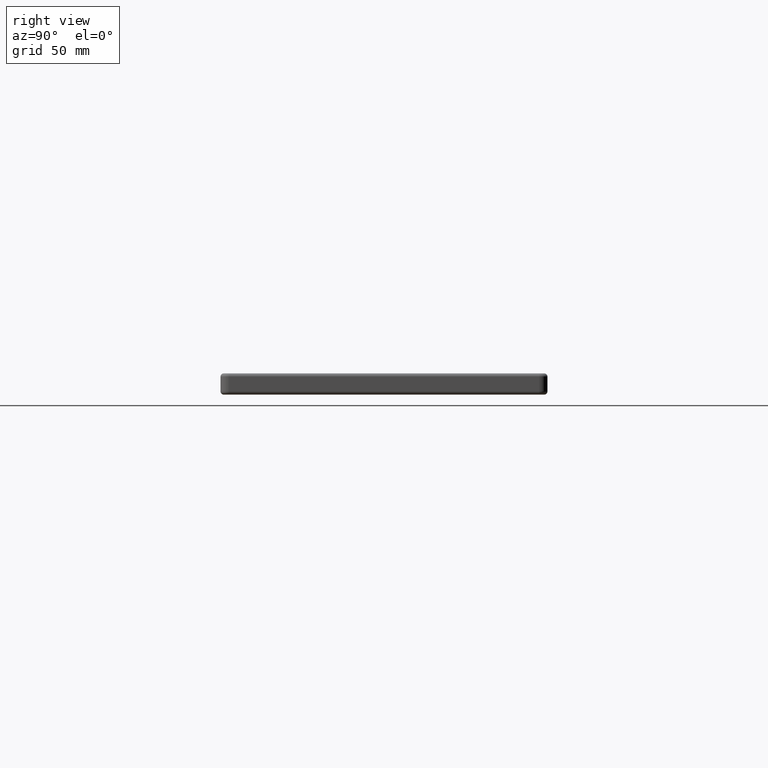
[diagram: clean part render]
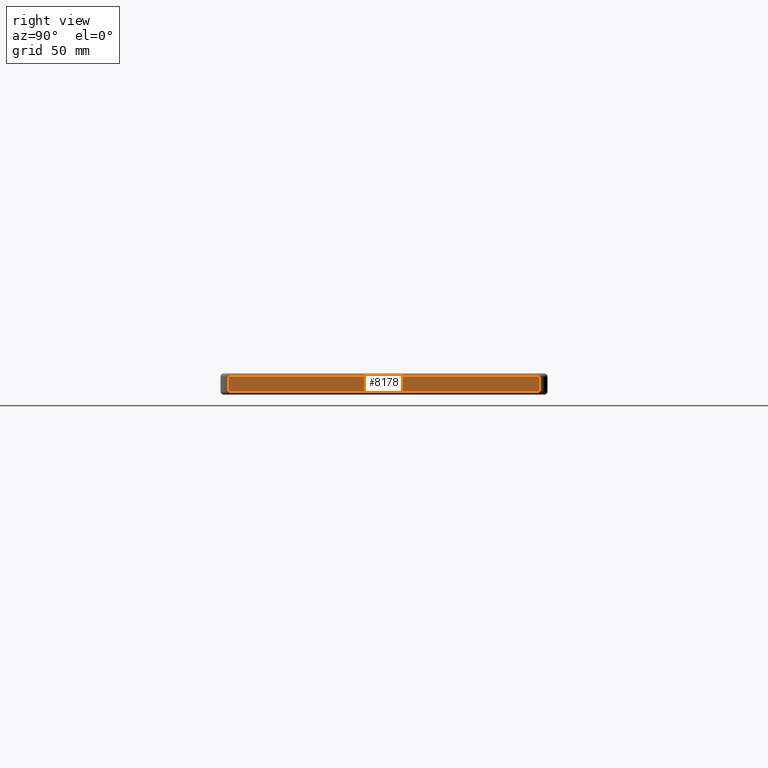
[diagram: same view with one face highlighted and labeled with its STEP entity id]
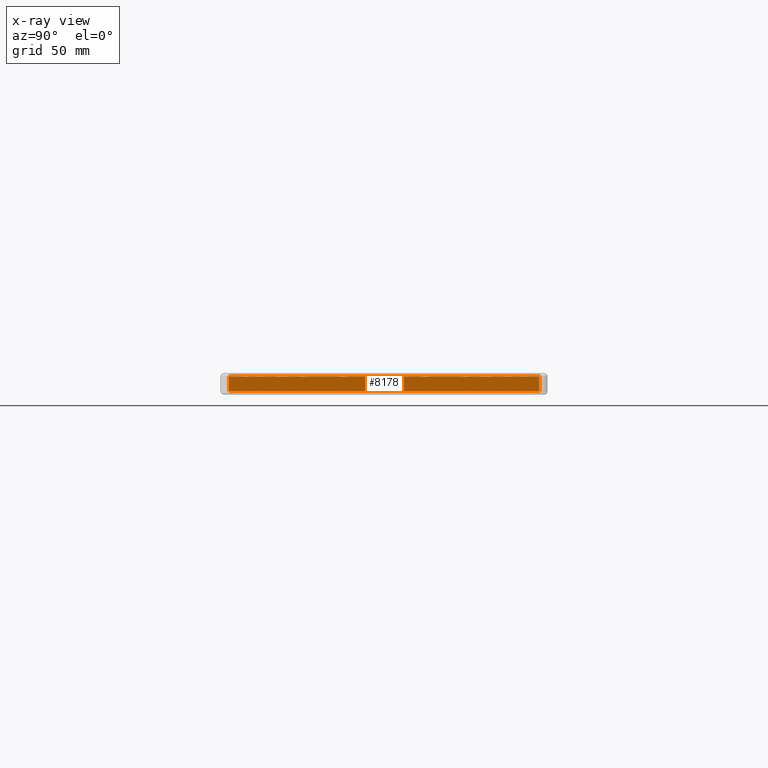
[diagram: x-ray of the same camera — body ghosted, the highlighted face saturated]
A machine part, right view. The second image highlights one B-rep face of the part: STEP entity #8178.
The next image is the same camera in x-ray: the body ghosted, the highlighted face saturated — about 0% of this face is hidden behind the body in this view.
In plain terms, the highlighted planar face has unit normal (1, 0, -0).
Its self-contained STEP definition (entity closure, byte-faithful):
#15 = EDGE_CURVE ( 'NONE', #4998, #7725, #4264, .T. ) ;
#364 = DIRECTION ( 'NONE',  ( 0.0000000000000000000, 0.0000000000000000000, 1.000000000000000000 ) ) ;
#470 = DIRECTION ( 'NONE',  ( 1.000000000000000000, 2.921639538487250300E-016, -0.0000000000000000000 ) ) ;
#869 = EDGE_CURVE ( 'NONE', #4998, #7840, #4595, .T. ) ;
#1389 = DIRECTION ( 'NONE',  ( 2.921639538487250300E-016, -1.000000000000000000, -0.0000000000000000000 ) ) ;
#1456 = DIRECTION ( 'NONE',  ( -2.921639538487250300E-016, 1.000000000000000000, 0.0000000000000000000 ) ) ;
#2570 = LINE ( 'NONE', #6990, #8968 ) ;
#2777 = CARTESIAN_POINT ( 'NONE',  ( 199.9999999999999400, 95.00000000000018500, -11.00000000000000000 ) ) ;
#3415 = CARTESIAN_POINT ( 'NONE',  ( 200.0000000000000600, -95.00000000000007100, -2.000000000000001800 ) ) ;
#3890 = ORIENTED_EDGE ( 'NONE', *, *, #15, .F. ) ;
#3933 = ORIENTED_EDGE ( 'NONE', *, *, #7842, .T. ) ;
#4264 = LINE ( 'NONE', #7737, #4830 ) ;
#4595 = LINE ( 'NONE', #5803, #6288 ) ;
#4830 = VECTOR ( 'NONE', #5626, 1000.000000000000000 ) ;
#4998 = VERTEX_POINT ( 'NONE', #8599 ) ;
#5321 = ORIENTED_EDGE ( 'NONE', *, *, #5952, .T. ) ;
#5621 = PLANE ( 'NONE',  #7967 ) ;
#5626 = DIRECTION ( 'NONE',  ( 0.0000000000000000000, 0.0000000000000000000, 1.000000000000000000 ) ) ;
#5803 = CARTESIAN_POINT ( 'NONE',  ( 200.0000000000000000, -95.00000000000007100, -11.00000000000000000 ) ) ;
#5952 = EDGE_CURVE ( 'NONE', #7840, #6139, #2570, .T. ) ;
#6032 = EDGE_LOOP ( 'NONE', ( #3890, #6700, #5321, #3933 ) ) ;
#6139 = VERTEX_POINT ( 'NONE', #7775 ) ;
#6288 = VECTOR ( 'NONE', #1456, 1000.000000000000000 ) ;
#6317 = DIRECTION ( 'NONE',  ( -2.921639538487250300E-016, 1.000000000000000000, 0.0000000000000000000 ) ) ;
#6700 = ORIENTED_EDGE ( 'NONE', *, *, #869, .T. ) ;
#6990 = CARTESIAN_POINT ( 'NONE',  ( 199.9999999999999400, 95.00000000000018500, -13.00000000000000000 ) ) ;
#7434 = FACE_OUTER_BOUND ( 'NONE', #6032, .T. ) ;
#7666 = VECTOR ( 'NONE', #1389, 1000.000000000000000 ) ;
#7698 = CARTESIAN_POINT ( 'NONE',  ( 200.0000000000000000, -95.00000000000007100, -13.00000000000000000 ) ) ;
#7725 = VERTEX_POINT ( 'NONE', #3415 ) ;
#7737 = CARTESIAN_POINT ( 'NONE',  ( 200.0000000000000600, -95.00000000000007100, -13.00000000000000000 ) ) ;
#7775 = CARTESIAN_POINT ( 'NONE',  ( 199.9999999999999400, 95.00000000000018500, -2.000000000000003600 ) ) ;
#7840 = VERTEX_POINT ( 'NONE', #2777 ) ;
#7842 = EDGE_CURVE ( 'NONE', #6139, #7725, #8254, .T. ) ;
#7967 = AXIS2_PLACEMENT_3D ( 'NONE', #7698, #470, #6317 ) ;
#8178 = ADVANCED_FACE ( 'NONE', ( #7434 ), #5621, .T. ) ;
#8254 = LINE ( 'NONE', #8585, #7666 ) ;
#8585 = CARTESIAN_POINT ( 'NONE',  ( 200.0000000000000000, -95.00000000000005700, -2.000000000000000000 ) ) ;
#8599 = CARTESIAN_POINT ( 'NONE',  ( 200.0000000000000600, -95.00000000000007100, -11.00000000000000000 ) ) ;
#8968 = VECTOR ( 'NONE', #364, 1000.000000000000000 ) ;